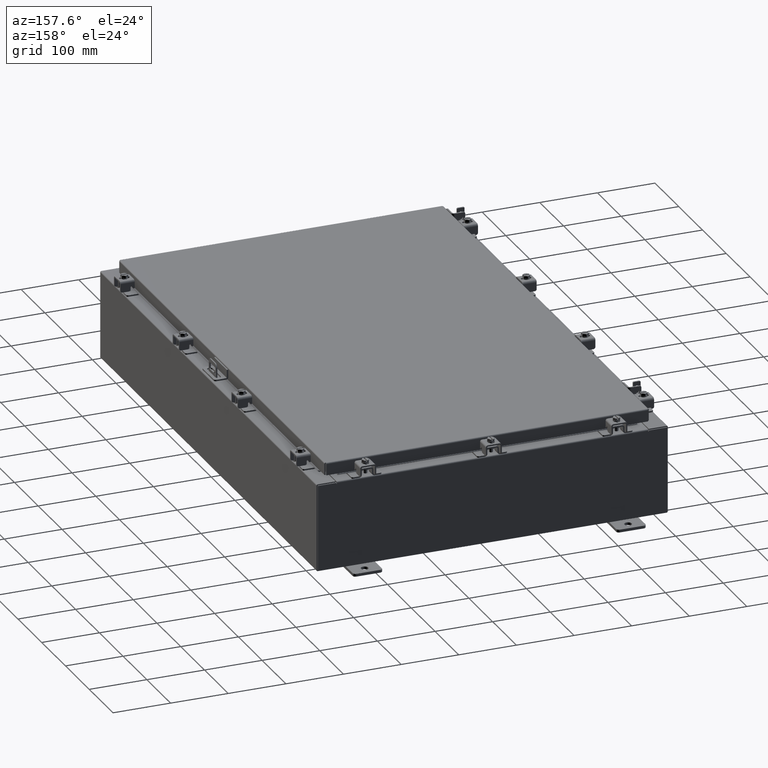
[diagram: clean part render]
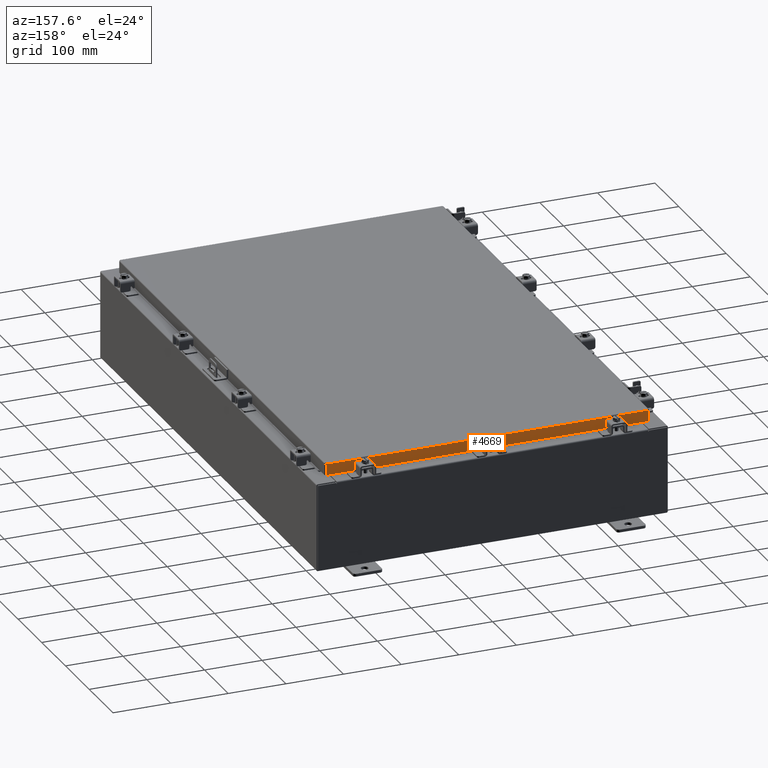
[diagram: same view with one face highlighted and labeled with its STEP entity id]
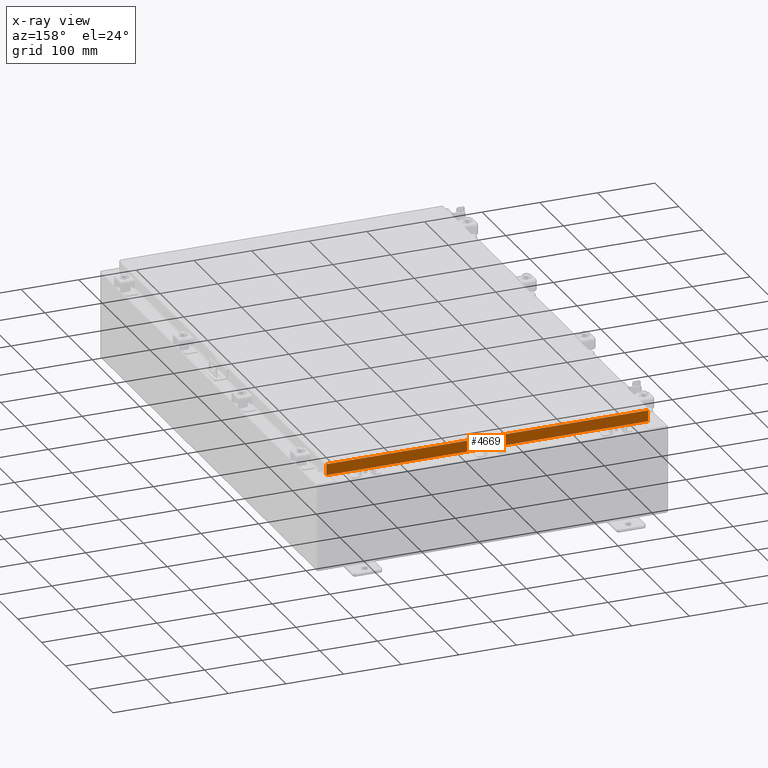
[diagram: x-ray of the same camera — body ghosted, the highlighted face saturated]
A machine part, auxiliary view. The second image highlights one B-rep face of the part: STEP entity #4669.
The next image is the same camera in x-ray: the body ghosted, the highlighted face saturated — about 0% of this face is hidden behind the body in this view.
In plain terms, the highlighted planar face has unit normal (0, -1, -0).
Its self-contained STEP definition (entity closure, byte-faithful):
#115 = DIRECTION ( 'NONE',  ( 1.000000000000000000, -0.0000000000000000000, -0.0000000000000000000 ) ) ;
#1297 = LINE ( 'NONE', #2835, #10818 ) ;
#1306 = LINE ( 'NONE', #12708, #10268 ) ;
#1431 = CARTESIAN_POINT ( 'NONE',  ( 10.23915786437626700, 17.09399999999999100, -0.8500000000000033100 ) ) ;
#2084 = CARTESIAN_POINT ( 'NONE',  ( -10.98915786437626900, 17.09399999999999800, -0.08770000000000007000 ) ) ;
#2701 = VECTOR ( 'NONE', #12593, 39.37007874015748100 ) ;
#2835 = CARTESIAN_POINT ( 'NONE',  ( -10.98915786437626900, 17.09399999999999800, -0.07469999999999978000 ) ) ;
#3211 = FACE_OUTER_BOUND ( 'NONE', #7724, .T. ) ;
#3551 = ORIENTED_EDGE ( 'NONE', *, *, #21947, .F. ) ;
#3699 = CARTESIAN_POINT ( 'NONE',  ( -10.23915786437626700, 17.09399999999999100, -0.8500000000000033100 ) ) ;
#3954 = EDGE_CURVE ( 'NONE', #13370, #6754, #1306, .T. ) ;
#4101 = DIRECTION ( 'NONE',  ( 3.475696988576941300E-031, -1.000000000000000000, -2.818880942772350300E-015 ) ) ;
#4669 = ADVANCED_FACE ( 'NONE', ( #3211 ), #11171, .F. ) ;
#5265 = LINE ( 'NONE', #7830, #18526 ) ;
#5487 = AXIS2_PLACEMENT_3D ( 'NONE', #13974, #4101, #13993 ) ;
#5639 = VERTEX_POINT ( 'NONE', #11217 ) ;
#5871 = ORIENTED_EDGE ( 'NONE', *, *, #22394, .F. ) ;
#6754 = VERTEX_POINT ( 'NONE', #8534 ) ;
#7319 = VERTEX_POINT ( 'NONE', #2084 ) ;
#7724 = EDGE_LOOP ( 'NONE', ( #3551, #15691, #16175, #9655, #11468, #5871 ) ) ;
#7830 = CARTESIAN_POINT ( 'NONE',  ( -11.07800000000000300, 17.09400000000000100, -0.8500000000000024200 ) ) ;
#7911 = DIRECTION ( 'NONE',  ( 0.0000000000000000000, 2.818880942772350300E-015, -1.000000000000000000 ) ) ;
#8534 = CARTESIAN_POINT ( 'NONE',  ( 10.98915786437626700, 17.09400000000000100, -0.8499999999999996400 ) ) ;
#8713 = EDGE_CURVE ( 'NONE', #5639, #16438, #5265, .T. ) ;
#8716 = EDGE_CURVE ( 'NONE', #16182, #6754, #9515, .T. ) ;
#8944 = VECTOR ( 'NONE', #7911, 39.37007874015748100 ) ;
#9515 = LINE ( 'NONE', #20429, #8944 ) ;
#9655 = ORIENTED_EDGE ( 'NONE', *, *, #17474, .F. ) ;
#9889 = CARTESIAN_POINT ( 'NONE',  ( 10.98915786437626700, 17.09399999999999800, -0.08770000000000007000 ) ) ;
#10268 = VECTOR ( 'NONE', #12389, 39.37007874015748100 ) ;
#10772 = CARTESIAN_POINT ( 'NONE',  ( -11.07800000000000300, 17.09399999999999800, -0.08770000000000007000 ) ) ;
#10818 = VECTOR ( 'NONE', #15425, 39.37007874015748100 ) ;
#11171 = PLANE ( 'NONE',  #5487 ) ;
#11217 = CARTESIAN_POINT ( 'NONE',  ( -10.98915786437626900, 17.09400000000000100, -0.8500000000000024200 ) ) ;
#11468 = ORIENTED_EDGE ( 'NONE', *, *, #8713, .F. ) ;
#12389 = DIRECTION ( 'NONE',  ( 1.000000000000000000, -4.379057701015054300E-047, 1.233005954894504400E-016 ) ) ;
#12546 = CARTESIAN_POINT ( 'NONE',  ( -10.23915786437626700, 17.09399999999999100, -0.8500000000000033100 ) ) ;
#12593 = DIRECTION ( 'NONE',  ( -1.000000000000000000, -3.475696988576942200E-031, -9.473942235605600700E-046 ) ) ;
#12708 = CARTESIAN_POINT ( 'NONE',  ( -11.07800000000000300, 17.09400000000000100, -0.8500000000000024200 ) ) ;
#13370 = VERTEX_POINT ( 'NONE', #1431 ) ;
#13974 = CARTESIAN_POINT ( 'NONE',  ( -5.941356432273423300E-030, 17.09399999999999800, 4.844676449176213100E-014 ) ) ;
#13993 = DIRECTION ( 'NONE',  ( 0.0000000000000000000, 2.818880942772350300E-015, -1.000000000000000000 ) ) ;
#15425 = DIRECTION ( 'NONE',  ( -0.0000000000000000000, 2.818880942772350300E-015, -1.000000000000000000 ) ) ;
#15691 = ORIENTED_EDGE ( 'NONE', *, *, #8716, .T. ) ;
#16175 = ORIENTED_EDGE ( 'NONE', *, *, #3954, .F. ) ;
#16182 = VERTEX_POINT ( 'NONE', #9889 ) ;
#16438 = VERTEX_POINT ( 'NONE', #12546 ) ;
#16899 = DIRECTION ( 'NONE',  ( 1.000000000000000000, -4.379057701015054300E-047, 1.233005954894504400E-016 ) ) ;
#17063 = LINE ( 'NONE', #10772, #2701 ) ;
#17474 = EDGE_CURVE ( 'NONE', #16438, #13370, #19928, .T. ) ;
#18526 = VECTOR ( 'NONE', #16899, 39.37007874015748100 ) ;
#19359 = VECTOR ( 'NONE', #115, 39.37007874015748100 ) ;
#19928 = LINE ( 'NONE', #3699, #19359 ) ;
#20429 = CARTESIAN_POINT ( 'NONE',  ( 10.98915786437626700, 17.09399999999999800, 4.844676449176213100E-014 ) ) ;
#21947 = EDGE_CURVE ( 'NONE', #16182, #7319, #17063, .T. ) ;
#22394 = EDGE_CURVE ( 'NONE', #7319, #5639, #1297, .T. ) ;